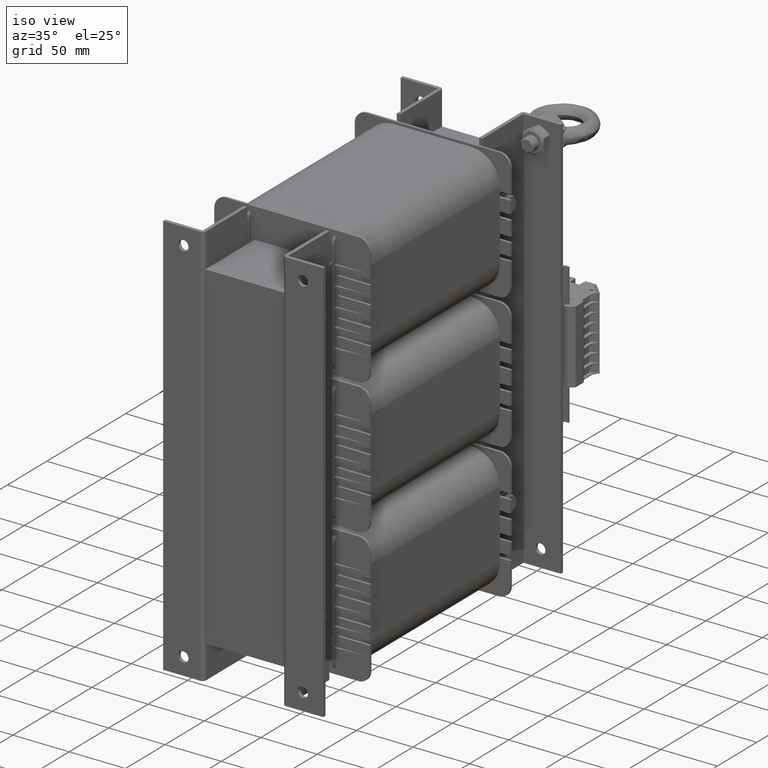
[diagram: clean part render]
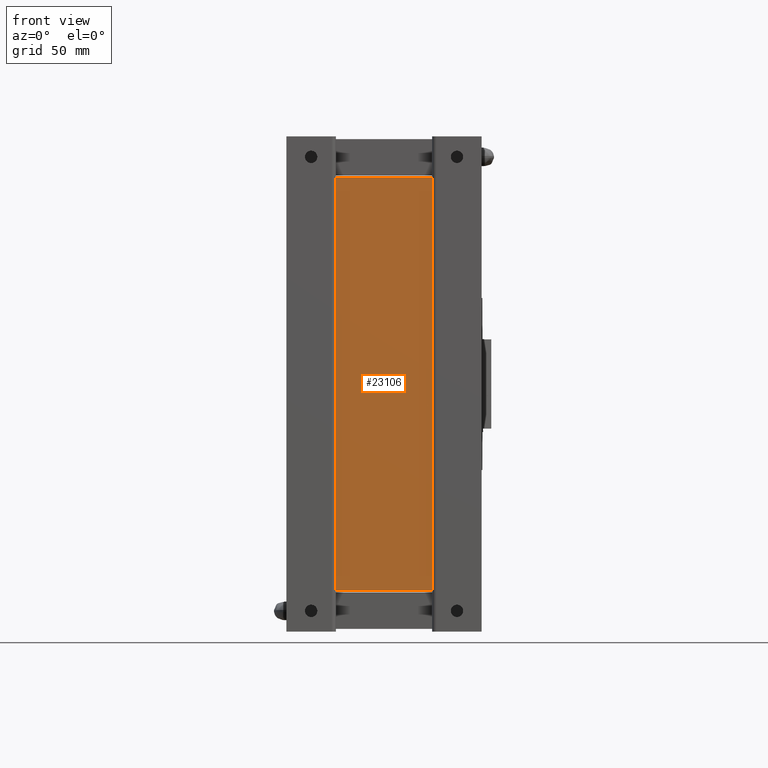
[diagram: tour spotlight — one face highlighted and labeled with its STEP entity id]
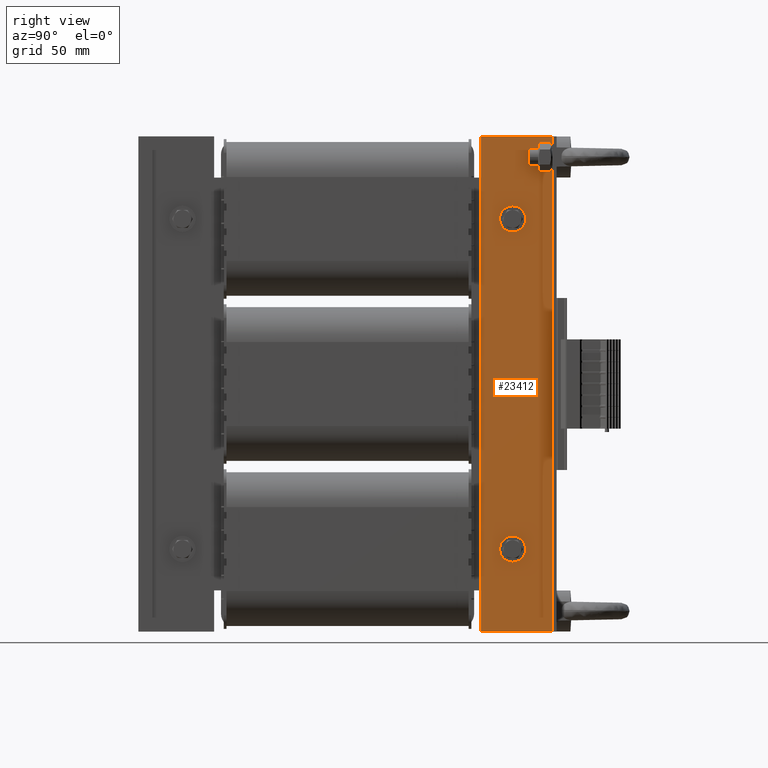
[diagram: tour spotlight — one face highlighted and labeled with its STEP entity id]
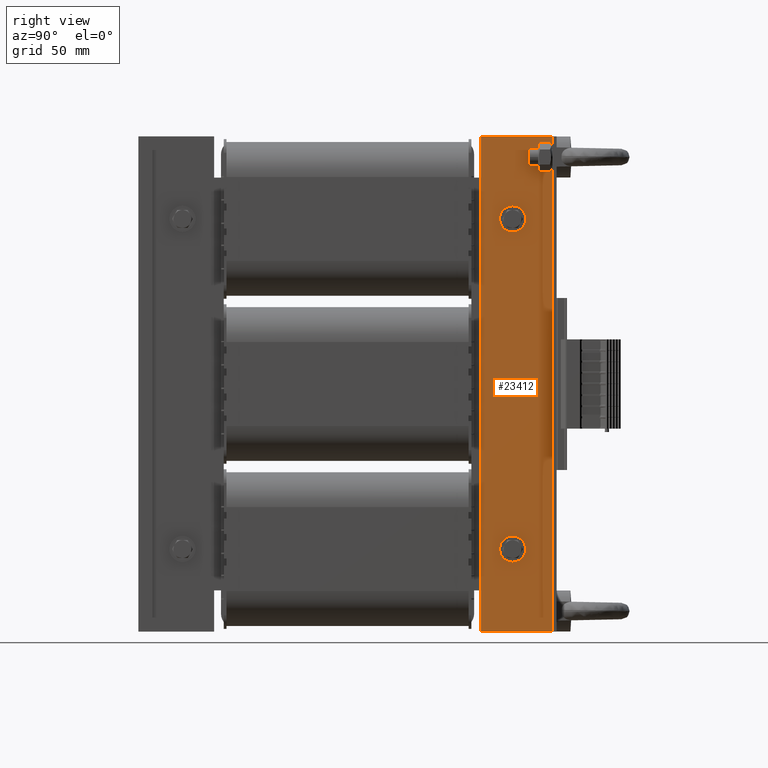
[diagram: tour spotlight — one face highlighted and labeled with its STEP entity id]
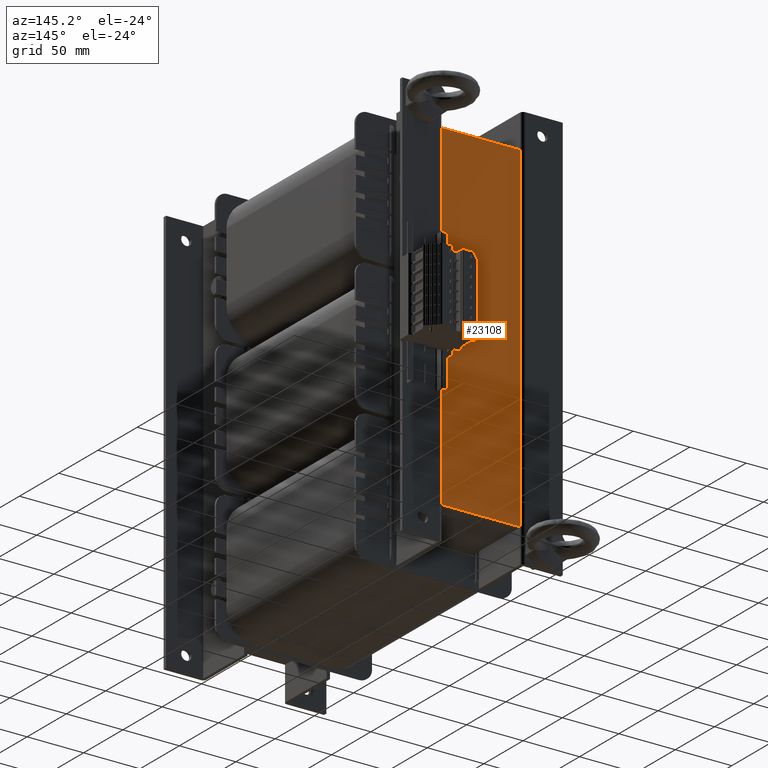
[diagram: tour spotlight — one face highlighted and labeled with its STEP entity id]
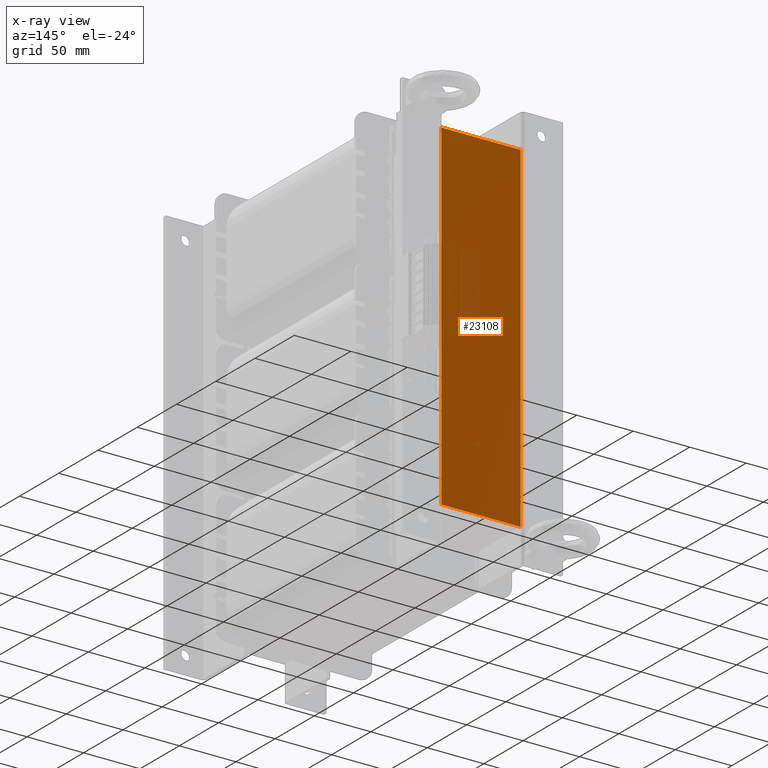
[diagram: x-ray of the same camera — body ghosted, this tour face saturated]
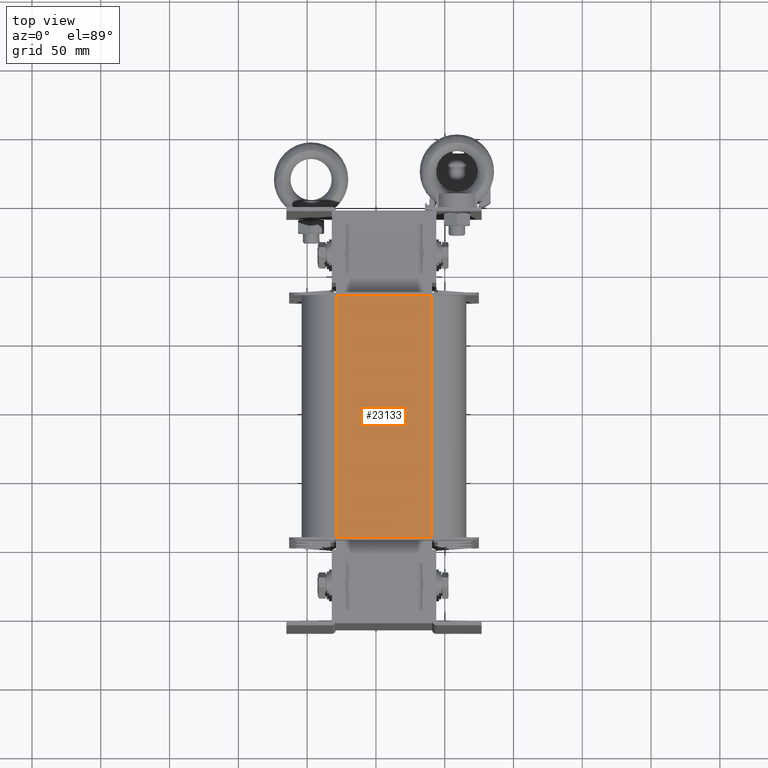
[diagram: tour spotlight — one face highlighted and labeled with its STEP entity id]
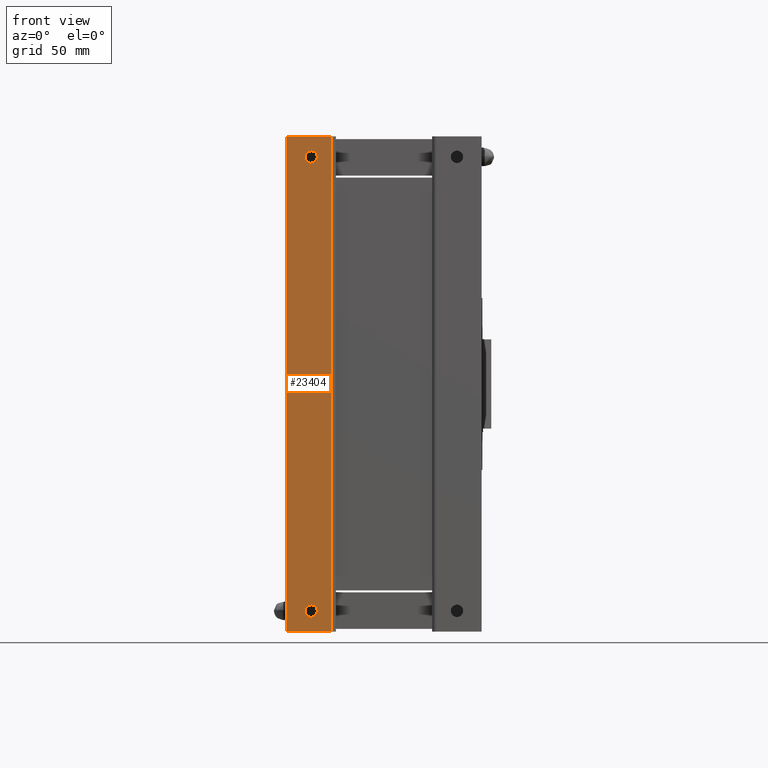
[diagram: tour spotlight — one face highlighted and labeled with its STEP entity id]
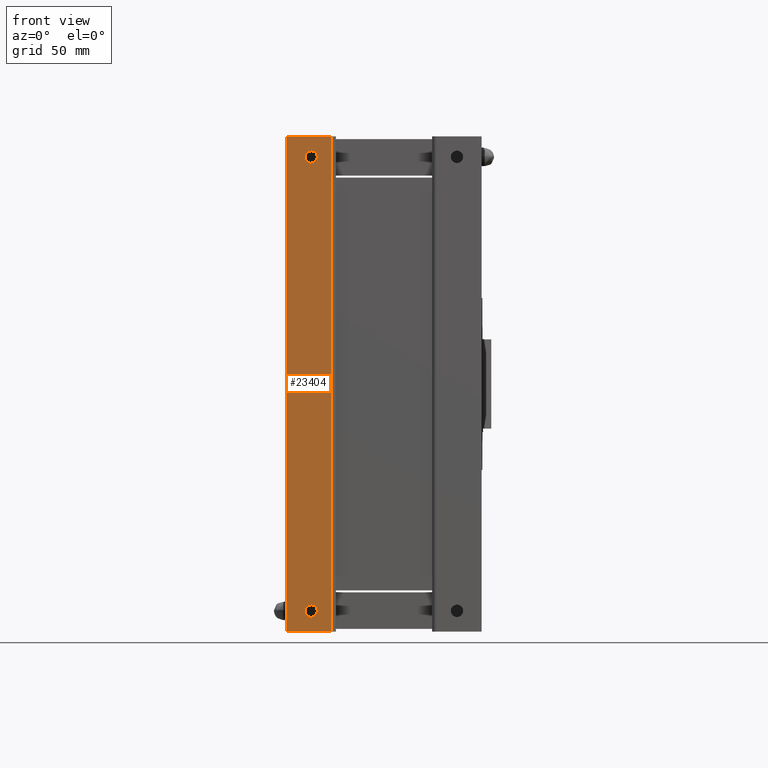
[diagram: tour spotlight — one face highlighted and labeled with its STEP entity id]
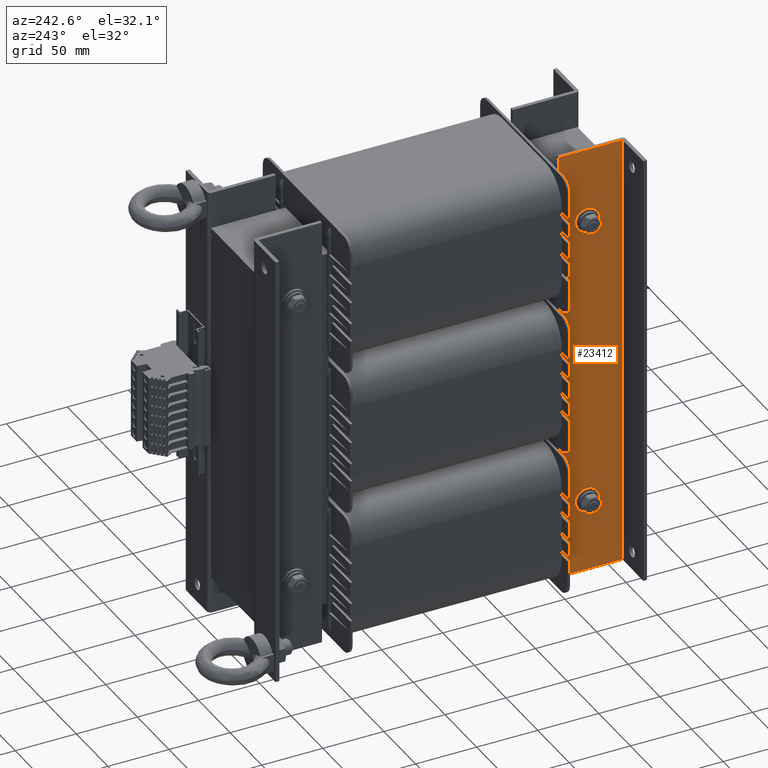
[diagram: tour spotlight — one face highlighted and labeled with its STEP entity id]
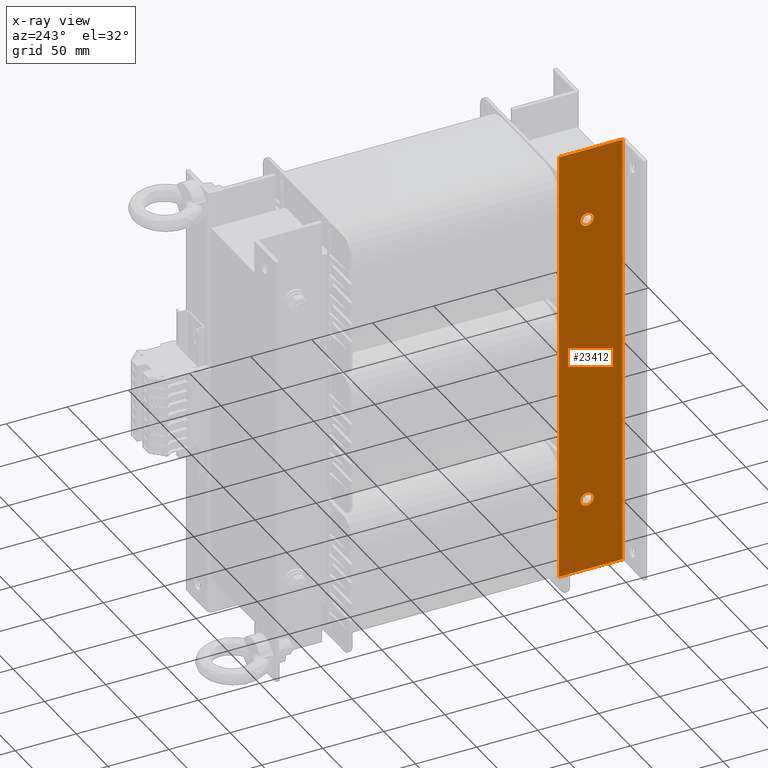
[diagram: x-ray of the same camera — body ghosted, this tour face saturated]
A machine part: a face-by-face anatomy tour. The part has 3384 B-rep faces; the first image is the clean iso view, then the 8 largest visible faces are spotlighted one at a time (largest first), each with its STEP entity span.

Face 1 — front view, entity #23106. In plain terms, the highlighted planar face has unit normal (-0, -1, 0).
Definition (entity closure, byte-faithful):
#2030=FACE_OUTER_BOUND('',#3265,.T.);
#3265=EDGE_LOOP('',(#15490,#15491,#15492,#15493));
#4591=LINE('',#33360,#7227);
#4592=LINE('',#33363,#7228);
#4593=LINE('',#33365,#7229);
#4594=LINE('',#33366,#7230);
#7227=VECTOR('',#26739,10.);
#7228=VECTOR('',#26742,10.);
#7229=VECTOR('',#26743,10.);
#7230=VECTOR('',#26744,10.);
#9856=VERTEX_POINT('',#33353);
#9859=VERTEX_POINT('',#33358);
#9860=VERTEX_POINT('',#33362);
#9861=VERTEX_POINT('',#33364);
#12087=EDGE_CURVE('',#9856,#9859,#4591,.T.);
#12088=EDGE_CURVE('',#9860,#9856,#4592,.T.);
#12089=EDGE_CURVE('',#9861,#9859,#4593,.T.);
#12090=EDGE_CURVE('',#9860,#9861,#4594,.T.);
#15490=ORIENTED_EDGE('',*,*,#12088,.T.);
#15491=ORIENTED_EDGE('',*,*,#12087,.T.);
#15492=ORIENTED_EDGE('',*,*,#12089,.F.);
#15493=ORIENTED_EDGE('',*,*,#12090,.F.);
#22227=PLANE('',#24695);
#23106=ADVANCED_FACE('',(#2030),#22227,.T.);
#24695=AXIS2_PLACEMENT_3D('',#33361,#26740,#26741);
#26739=DIRECTION('',(1.,0.,0.));
#26740=DIRECTION('center_axis',(0.,-1.,-3.5527136788005E-16));
#26741=DIRECTION('ref_axis',(0.,3.5527136788005E-16,-1.));
#26742=DIRECTION('',(0.,3.5527136788005E-16,-1.));
#26743=DIRECTION('',(0.,3.5527136788005E-16,-1.));
#26744=DIRECTION('',(1.,0.,0.));
#33353=CARTESIAN_POINT('',(0.,0.,0.));
#33358=CARTESIAN_POINT('',(70.,0.,0.));
#33360=CARTESIAN_POINT('',(0.,0.,0.));
#33361=CARTESIAN_POINT('Origin',(0.,-1.06581410364015E-13,300.));
#33362=CARTESIAN_POINT('',(0.,-1.06581410364015E-13,300.));
#33363=CARTESIAN_POINT('',(0.,-1.06581410364015E-13,300.));
#33364=CARTESIAN_POINT('',(70.,-1.06581410364015E-13,300.));
#33365=CARTESIAN_POINT('',(70.,-1.06581410364015E-13,300.));
#33366=CARTESIAN_POINT('',(0.,-1.06581410364015E-13,300.));

Face 2 — right view, entity #23412. In plain terms, the highlighted planar face has unit normal (1, -0, 0).
Definition (entity closure, byte-faithful):
#1047=FACE_BOUND('',#3598,.T.);
#1048=FACE_BOUND('',#3599,.T.);
#1208=CIRCLE('',#25106,5.25);
#1209=CIRCLE('',#25108,5.24999999999999);
#2336=FACE_OUTER_BOUND('',#3597,.T.);
#3597=EDGE_LOOP('',(#17080,#17081,#17082,#17083));
#3598=EDGE_LOOP('',(#17084));
#3599=EDGE_LOOP('',(#17085));
#5253=LINE('',#34937,#7889);
#5256=LINE('',#34943,#7892);
#5261=LINE('',#34962,#7897);
#5263=LINE('',#34965,#7899);
#7889=VECTOR('',#28213,10.);
#7892=VECTOR('',#28218,10.);
#7897=VECTOR('',#28239,10.);
#7899=VECTOR('',#28243,10.);
#10341=VERTEX_POINT('',#34922);
#10342=VERTEX_POINT('',#34926);
#10345=VERTEX_POINT('',#34941);
#10349=VERTEX_POINT('',#34953);
#10350=VERTEX_POINT('',#34957);
#10351=VERTEX_POINT('',#34961);
#12857=EDGE_CURVE('',#10341,#10342,#5253,.T.);
#12860=EDGE_CURVE('',#10345,#10342,#5256,.T.);
#12866=EDGE_CURVE('',#10349,#10349,#1208,.T.);
#12868=EDGE_CURVE('',#10350,#10350,#1209,.T.);
#12869=EDGE_CURVE('',#10351,#10345,#5261,.T.);
#12871=EDGE_CURVE('',#10341,#10351,#5263,.T.);
#17080=ORIENTED_EDGE('',*,*,#12857,.T.);
#17081=ORIENTED_EDGE('',*,*,#12860,.F.);
#17082=ORIENTED_EDGE('',*,*,#12869,.F.);
#17083=ORIENTED_EDGE('',*,*,#12871,.F.);
#17084=ORIENTED_EDGE('',*,*,#12866,.T.);
#17085=ORIENTED_EDGE('',*,*,#12868,.T.);
#22477=PLANE('',#25111);
#23412=ADVANCED_FACE('',(#2336,#1047,#1048),#22477,.T.);
#25106=AXIS2_PLACEMENT_3D('',#34955,#28230,#28231);
#25108=AXIS2_PLACEMENT_3D('',#34959,#28235,#28236);
#25111=AXIS2_PLACEMENT_3D('',#34966,#28244,#28245);
#28213=DIRECTION('',(2.96059473233375E-16,0.,1.));
#28218=DIRECTION('',(-1.,0.,0.));
#28230=DIRECTION('center_axis',(0.,-1.,0.));
#28231=DIRECTION('ref_axis',(1.,0.,0.));
#28235=DIRECTION('center_axis',(0.,-1.,0.));
#28236=DIRECTION('ref_axis',(1.,0.,0.));
#28239=DIRECTION('',(3.20731096002823E-16,0.,1.));
#28243=DIRECTION('',(1.,0.,0.));
#28244=DIRECTION('center_axis',(0.,1.,0.));
#28245=DIRECTION('ref_axis',(0.,0.,1.));
#34922=CARTESIAN_POINT('',(-51.999,3.,0.));
#34926=CARTESIAN_POINT('',(-51.9989999999999,3.,360.));
#34937=CARTESIAN_POINT('',(-51.9989999999999,3.,270.));
#34941=CARTESIAN_POINT('',(1.15463194561016E-13,3.,360.));
#34943=CARTESIAN_POINT('',(-54.9999999999999,3.,360.));
#34953=CARTESIAN_POINT('',(-28.25,3.,60.));
#34955=CARTESIAN_POINT('Origin',(-23.,3.,60.));
#34957=CARTESIAN_POINT('',(-28.25,3.,300.));
#34959=CARTESIAN_POINT('Origin',(-23.,3.,300.));
#34961=CARTESIAN_POINT('',(0.,3.,0.));
#34962=CARTESIAN_POINT('',(1.15463194561016E-13,3.,360.));
#34965=CARTESIAN_POINT('',(0.,3.,0.));
#34966=CARTESIAN_POINT('Origin',(-27.4999999999999,3.,180.));

Face 3 — right view, entity #23412. In plain terms, the highlighted planar face has unit normal (1, -0, 0).
Definition (entity closure, byte-faithful):
#1047=FACE_BOUND('',#3598,.T.);
#1048=FACE_BOUND('',#3599,.T.);
#1208=CIRCLE('',#25106,5.25);
#1209=CIRCLE('',#25108,5.24999999999999);
#2336=FACE_OUTER_BOUND('',#3597,.T.);
#3597=EDGE_LOOP('',(#17080,#17081,#17082,#17083));
#3598=EDGE_LOOP('',(#17084));
#3599=EDGE_LOOP('',(#17085));
#5253=LINE('',#34937,#7889);
#5256=LINE('',#34943,#7892);
#5261=LINE('',#34962,#7897);
#5263=LINE('',#34965,#7899);
#7889=VECTOR('',#28213,10.);
#7892=VECTOR('',#28218,10.);
#7897=VECTOR('',#28239,10.);
#7899=VECTOR('',#28243,10.);
#10341=VERTEX_POINT('',#34922);
#10342=VERTEX_POINT('',#34926);
#10345=VERTEX_POINT('',#34941);
#10349=VERTEX_POINT('',#34953);
#10350=VERTEX_POINT('',#34957);
#10351=VERTEX_POINT('',#34961);
#12857=EDGE_CURVE('',#10341,#10342,#5253,.T.);
#12860=EDGE_CURVE('',#10345,#10342,#5256,.T.);
#12866=EDGE_CURVE('',#10349,#10349,#1208,.T.);
#12868=EDGE_CURVE('',#10350,#10350,#1209,.T.);
#12869=EDGE_CURVE('',#10351,#10345,#5261,.T.);
#12871=EDGE_CURVE('',#10341,#10351,#5263,.T.);
#17080=ORIENTED_EDGE('',*,*,#12857,.T.);
#17081=ORIENTED_EDGE('',*,*,#12860,.F.);
#17082=ORIENTED_EDGE('',*,*,#12869,.F.);
#17083=ORIENTED_EDGE('',*,*,#12871,.F.);
#17084=ORIENTED_EDGE('',*,*,#12866,.T.);
#17085=ORIENTED_EDGE('',*,*,#12868,.T.);
#22477=PLANE('',#25111);
#23412=ADVANCED_FACE('',(#2336,#1047,#1048),#22477,.T.);
#25106=AXIS2_PLACEMENT_3D('',#34955,#28230,#28231);
#25108=AXIS2_PLACEMENT_3D('',#34959,#28235,#28236);
#25111=AXIS2_PLACEMENT_3D('',#34966,#28244,#28245);
#28213=DIRECTION('',(2.96059473233375E-16,0.,1.));
#28218=DIRECTION('',(-1.,0.,0.));
#28230=DIRECTION('center_axis',(0.,-1.,0.));
#28231=DIRECTION('ref_axis',(1.,0.,0.));
#28235=DIRECTION('center_axis',(0.,-1.,0.));
#28236=DIRECTION('ref_axis',(1.,0.,0.));
#28239=DIRECTION('',(3.20731096002823E-16,0.,1.));
#28243=DIRECTION('',(1.,0.,0.));
#28244=DIRECTION('center_axis',(0.,1.,0.));
#28245=DIRECTION('ref_axis',(0.,0.,1.));
#34922=CARTESIAN_POINT('',(-51.999,3.,0.));
#34926=CARTESIAN_POINT('',(-51.9989999999999,3.,360.));
#34937=CARTESIAN_POINT('',(-51.9989999999999,3.,270.));
#34941=CARTESIAN_POINT('',(1.15463194561016E-13,3.,360.));
#34943=CARTESIAN_POINT('',(-54.9999999999999,3.,360.));
#34953=CARTESIAN_POINT('',(-28.25,3.,60.));
#34955=CARTESIAN_POINT('Origin',(-23.,3.,60.));
#34957=CARTESIAN_POINT('',(-28.25,3.,300.));
#34959=CARTESIAN_POINT('Origin',(-23.,3.,300.));
#34961=CARTESIAN_POINT('',(0.,3.,0.));
#34962=CARTESIAN_POINT('',(1.15463194561016E-13,3.,360.));
#34965=CARTESIAN_POINT('',(0.,3.,0.));
#34966=CARTESIAN_POINT('Origin',(-27.4999999999999,3.,180.));

Face 4 — auxiliary view, entity #23108. An x-ray twin of the same camera follows (body ghosted, this face saturated) — the face is partly hidden behind the body. In plain terms, the highlighted planar face has unit normal (0, 1, -0).
Definition (entity closure, byte-faithful):
#2032=FACE_OUTER_BOUND('',#3267,.T.);
#3267=EDGE_LOOP('',(#15498,#15499,#15500,#15501));
#4589=LINE('',#33357,#7225);
#4597=LINE('',#33372,#7233);
#4598=LINE('',#33374,#7234);
#4599=LINE('',#33375,#7235);
#7225=VECTOR('',#26737,10.);
#7233=VECTOR('',#26749,10.);
#7234=VECTOR('',#26752,10.);
#7235=VECTOR('',#26753,10.);
#9857=VERTEX_POINT('',#33354);
#9858=VERTEX_POINT('',#33356);
#9862=VERTEX_POINT('',#33368);
#9863=VERTEX_POINT('',#33370);
#12085=EDGE_CURVE('',#9857,#9858,#4589,.T.);
#12093=EDGE_CURVE('',#9862,#9863,#4597,.T.);
#12094=EDGE_CURVE('',#9857,#9862,#4598,.T.);
#12095=EDGE_CURVE('',#9858,#9863,#4599,.T.);
#15498=ORIENTED_EDGE('',*,*,#12094,.T.);
#15499=ORIENTED_EDGE('',*,*,#12093,.T.);
#15500=ORIENTED_EDGE('',*,*,#12095,.F.);
#15501=ORIENTED_EDGE('',*,*,#12085,.F.);
#22229=PLANE('',#24697);
#23108=ADVANCED_FACE('',(#2032),#22229,.T.);
#24697=AXIS2_PLACEMENT_3D('',#33373,#26750,#26751);
#26737=DIRECTION('',(1.,0.,0.));
#26749=DIRECTION('',(1.,0.,0.));
#26750=DIRECTION('center_axis',(0.,1.,2.368475785867E-16));
#26751=DIRECTION('ref_axis',(0.,-2.368475785867E-16,1.));
#26752=DIRECTION('',(0.,-2.368475785867E-16,1.));
#26753=DIRECTION('',(0.,-2.368475785867E-16,1.));
#33354=CARTESIAN_POINT('',(0.,300.,0.));
#33356=CARTESIAN_POINT('',(70.,300.,0.));
#33357=CARTESIAN_POINT('',(0.,300.,0.));
#33368=CARTESIAN_POINT('',(0.,300.,300.));
#33370=CARTESIAN_POINT('',(70.,300.,300.));
#33372=CARTESIAN_POINT('',(0.,300.,300.));
#33373=CARTESIAN_POINT('Origin',(0.,300.,0.));
#33374=CARTESIAN_POINT('',(0.,300.,0.));
#33375=CARTESIAN_POINT('',(70.,300.,0.));

Face 5 — top view, entity #23133. In plain terms, the highlighted planar face has unit normal (0, 0, 1).
Definition (entity closure, byte-faithful):
#2057=FACE_OUTER_BOUND('',#3304,.T.);
#3304=EDGE_LOOP('',(#15654,#15655,#15656,#15657));
#4692=LINE('',#33576,#7328);
#4693=LINE('',#33580,#7329);
#4694=LINE('',#33582,#7330);
#4695=LINE('',#33583,#7331);
#7328=VECTOR('',#26906,10.);
#7329=VECTOR('',#26911,10.);
#7330=VECTOR('',#26912,10.);
#7331=VECTOR('',#26913,10.);
#9940=VERTEX_POINT('',#33573);
#9941=VERTEX_POINT('',#33575);
#9942=VERTEX_POINT('',#33579);
#9943=VERTEX_POINT('',#33581);
#12193=EDGE_CURVE('',#9941,#9940,#4692,.T.);
#12195=EDGE_CURVE('',#9942,#9940,#4693,.T.);
#12196=EDGE_CURVE('',#9943,#9942,#4694,.T.);
#12197=EDGE_CURVE('',#9941,#9943,#4695,.T.);
#15654=ORIENTED_EDGE('',*,*,#12195,.F.);
#15655=ORIENTED_EDGE('',*,*,#12196,.F.);
#15656=ORIENTED_EDGE('',*,*,#12197,.F.);
#15657=ORIENTED_EDGE('',*,*,#12193,.T.);
#22251=PLANE('',#24729);
#23133=ADVANCED_FACE('',(#2057),#22251,.T.);
#24729=AXIS2_PLACEMENT_3D('',#33578,#26909,#26910);
#26906=DIRECTION('',(0.,1.,0.));
#26909=DIRECTION('center_axis',(0.,0.,1.));
#26910=DIRECTION('ref_axis',(1.,0.,0.));
#26911=DIRECTION('',(1.,0.,0.));
#26912=DIRECTION('',(0.,1.,0.));
#26913=DIRECTION('',(-1.,0.,0.));
#33573=CARTESIAN_POINT('',(29.4999999999709,178.,55.8691630029813));
#33575=CARTESIAN_POINT('',(29.4999999999709,2.,55.8691630029813));
#33576=CARTESIAN_POINT('',(29.4999999999709,2.,55.8691630029813));
#33578=CARTESIAN_POINT('Origin',(-39.4999999999709,2.,55.8691630029813));
#33579=CARTESIAN_POINT('',(-39.4999999999709,178.,55.8691630029813));
#33580=CARTESIAN_POINT('',(-22.2499999999854,178.,55.8691630029813));
#33581=CARTESIAN_POINT('',(-39.4999999999709,2.,55.8691630029813));
#33582=CARTESIAN_POINT('',(-39.4999999999709,2.,55.8691630029813));
#33583=CARTESIAN_POINT('',(-22.2499999999854,2.,55.8691630029813));

Face 6 — front view, entity #23404. In plain terms, the highlighted planar face has unit normal (-0, 1, 0).
Definition (entity closure, byte-faithful):
#1043=FACE_BOUND('',#3586,.T.);
#1044=FACE_BOUND('',#3587,.T.);
#1199=CIRCLE('',#25084,4.5);
#1201=CIRCLE('',#25087,4.5);
#2328=FACE_OUTER_BOUND('',#3585,.T.);
#3585=EDGE_LOOP('',(#17044,#17045,#17046,#17047));
#3586=EDGE_LOOP('',(#17048));
#3587=EDGE_LOOP('',(#17049));
#5238=LINE('',#34900,#7874);
#5243=LINE('',#34913,#7879);
#5250=LINE('',#34931,#7886);
#5252=LINE('',#34934,#7888);
#7874=VECTOR('',#28174,10.);
#7879=VECTOR('',#28185,10.);
#7886=VECTOR('',#28204,10.);
#7888=VECTOR('',#28208,10.);
#10329=VERTEX_POINT('',#34888);
#10331=VERTEX_POINT('',#34894);
#10332=VERTEX_POINT('',#34898);
#10333=VERTEX_POINT('',#34899);
#10338=VERTEX_POINT('',#34911);
#10343=VERTEX_POINT('',#34930);
#12834=EDGE_CURVE('',#10329,#10329,#1199,.T.);
#12837=EDGE_CURVE('',#10331,#10331,#1201,.T.);
#12838=EDGE_CURVE('',#10332,#10333,#5238,.T.);
#12845=EDGE_CURVE('',#10338,#10333,#5243,.T.);
#12854=EDGE_CURVE('',#10332,#10343,#5250,.T.);
#12856=EDGE_CURVE('',#10343,#10338,#5252,.T.);
#17044=ORIENTED_EDGE('',*,*,#12838,.T.);
#17045=ORIENTED_EDGE('',*,*,#12845,.F.);
#17046=ORIENTED_EDGE('',*,*,#12856,.F.);
#17047=ORIENTED_EDGE('',*,*,#12854,.F.);
#17048=ORIENTED_EDGE('',*,*,#12834,.T.);
#17049=ORIENTED_EDGE('',*,*,#12837,.T.);
#22472=PLANE('',#25099);
#23404=ADVANCED_FACE('',(#2328,#1043,#1044),#22472,.F.);
#25084=AXIS2_PLACEMENT_3D('',#34890,#28163,#28164);
#25087=AXIS2_PLACEMENT_3D('',#34896,#28170,#28171);
#25099=AXIS2_PLACEMENT_3D('',#34935,#28209,#28210);
#28163=DIRECTION('center_axis',(1.,-1.78077262884922E-15,-3.68689198618071E-14));
#28164=DIRECTION('ref_axis',(4.736951571734E-14,-3.25665420556713E-14,1.));
#28170=DIRECTION('center_axis',(1.,-1.78077262884922E-15,-3.68689198618071E-14));
#28171=DIRECTION('ref_axis',(3.70074341541719E-14,-3.25665420556712E-14,
1.));
#28174=DIRECTION('',(3.68689198618071E-14,-6.26651381584941E-29,1.));
#28185=DIRECTION('',(-4.44577050078186E-12,-1.,3.20731096004249E-16));
#28204=DIRECTION('',(1.71512449944288E-15,1.,-5.42341872339446E-31));
#28208=DIRECTION('',(5.15143483426072E-14,-3.25418704329019E-14,1.));
#28209=DIRECTION('center_axis',(1.,-1.78077262884922E-15,-3.68689198618071E-14));
#28210=DIRECTION('ref_axis',(3.68689198618071E-14,3.2073109600276E-16,1.));
#34888=CARTESIAN_POINT('',(-54.9999999999881,18.0000000000006,340.499999999999));
#34890=CARTESIAN_POINT('Origin',(-54.9999999999862,18.0000000000005,344.999999999999));
#34894=CARTESIAN_POINT('',(-55.0000000000003,18.0000000000114,10.4999999999993));
#34896=CARTESIAN_POINT('Origin',(-55.0000000000002,18.0000000000112,14.9999999999993));
#34898=CARTESIAN_POINT('',(-55.0000000000033,3.00100000000001,-3.30587232976065E-14));
#34899=CARTESIAN_POINT('',(-54.9999999999848,3.001,360.));
#34900=CARTESIAN_POINT('',(-54.9999999999941,3.001,179.999999999999));
#34911=CARTESIAN_POINT('',(-54.9999999999874,36.,360.));
#34913=CARTESIAN_POINT('',(-54.999999999994,0.925978052309819,360.));
#34930=CARTESIAN_POINT('',(-55.0000000000007,36.0000000000117,-3.30587232976074E-14));
#34931=CARTESIAN_POINT('',(-55.0000000000033,3.00100000001172,-3.30587232976065E-14));
#34934=CARTESIAN_POINT('',(-55.0000000000033,36.0000000000117,-3.30587232976066E-14));
#34935=CARTESIAN_POINT('Origin',(-54.999999999994,18.4629890261578,179.999999999997));

Face 7 — front view, entity #23404. In plain terms, the highlighted planar face has unit normal (0, 1, -0).
Definition (entity closure, byte-faithful):
#1043=FACE_BOUND('',#3586,.T.);
#1044=FACE_BOUND('',#3587,.T.);
#1199=CIRCLE('',#25084,4.5);
#1201=CIRCLE('',#25087,4.5);
#2328=FACE_OUTER_BOUND('',#3585,.T.);
#3585=EDGE_LOOP('',(#17044,#17045,#17046,#17047));
#3586=EDGE_LOOP('',(#17048));
#3587=EDGE_LOOP('',(#17049));
#5238=LINE('',#34900,#7874);
#5243=LINE('',#34913,#7879);
#5250=LINE('',#34931,#7886);
#5252=LINE('',#34934,#7888);
#7874=VECTOR('',#28174,10.);
#7879=VECTOR('',#28185,10.);
#7886=VECTOR('',#28204,10.);
#7888=VECTOR('',#28208,10.);
#10329=VERTEX_POINT('',#34888);
#10331=VERTEX_POINT('',#34894);
#10332=VERTEX_POINT('',#34898);
#10333=VERTEX_POINT('',#34899);
#10338=VERTEX_POINT('',#34911);
#10343=VERTEX_POINT('',#34930);
#12834=EDGE_CURVE('',#10329,#10329,#1199,.T.);
#12837=EDGE_CURVE('',#10331,#10331,#1201,.T.);
#12838=EDGE_CURVE('',#10332,#10333,#5238,.T.);
#12845=EDGE_CURVE('',#10338,#10333,#5243,.T.);
#12854=EDGE_CURVE('',#10332,#10343,#5250,.T.);
#12856=EDGE_CURVE('',#10343,#10338,#5252,.T.);
#17044=ORIENTED_EDGE('',*,*,#12838,.T.);
#17045=ORIENTED_EDGE('',*,*,#12845,.F.);
#17046=ORIENTED_EDGE('',*,*,#12856,.F.);
#17047=ORIENTED_EDGE('',*,*,#12854,.F.);
#17048=ORIENTED_EDGE('',*,*,#12834,.T.);
#17049=ORIENTED_EDGE('',*,*,#12837,.T.);
#22472=PLANE('',#25099);
#23404=ADVANCED_FACE('',(#2328,#1043,#1044),#22472,.F.);
#25084=AXIS2_PLACEMENT_3D('',#34890,#28163,#28164);
#25087=AXIS2_PLACEMENT_3D('',#34896,#28170,#28171);
#25099=AXIS2_PLACEMENT_3D('',#34935,#28209,#28210);
#28163=DIRECTION('center_axis',(1.,-1.78077262884922E-15,-3.68689198618071E-14));
#28164=DIRECTION('ref_axis',(4.736951571734E-14,-3.25665420556713E-14,1.));
#28170=DIRECTION('center_axis',(1.,-1.78077262884922E-15,-3.68689198618071E-14));
#28171=DIRECTION('ref_axis',(3.70074341541719E-14,-3.25665420556712E-14,
1.));
#28174=DIRECTION('',(3.68689198618071E-14,-6.26651381584941E-29,1.));
#28185=DIRECTION('',(-4.44577050078186E-12,-1.,3.20731096004249E-16));
#28204=DIRECTION('',(1.71512449944288E-15,1.,-5.42341872339446E-31));
#28208=DIRECTION('',(5.15143483426072E-14,-3.25418704329019E-14,1.));
#28209=DIRECTION('center_axis',(1.,-1.78077262884922E-15,-3.68689198618071E-14));
#28210=DIRECTION('ref_axis',(3.68689198618071E-14,3.2073109600276E-16,1.));
#34888=CARTESIAN_POINT('',(-54.9999999999881,18.0000000000006,340.499999999999));
#34890=CARTESIAN_POINT('Origin',(-54.9999999999862,18.0000000000005,344.999999999999));
#34894=CARTESIAN_POINT('',(-55.0000000000003,18.0000000000114,10.4999999999993));
#34896=CARTESIAN_POINT('Origin',(-55.0000000000002,18.0000000000112,14.9999999999993));
#34898=CARTESIAN_POINT('',(-55.0000000000033,3.00100000000001,-3.30587232976065E-14));
#34899=CARTESIAN_POINT('',(-54.9999999999848,3.001,360.));
#34900=CARTESIAN_POINT('',(-54.9999999999941,3.001,179.999999999999));
#34911=CARTESIAN_POINT('',(-54.9999999999874,36.,360.));
#34913=CARTESIAN_POINT('',(-54.999999999994,0.925978052309819,360.));
#34930=CARTESIAN_POINT('',(-55.0000000000007,36.0000000000117,-3.30587232976074E-14));
#34931=CARTESIAN_POINT('',(-55.0000000000033,3.00100000001172,-3.30587232976065E-14));
#34934=CARTESIAN_POINT('',(-55.0000000000033,36.0000000000117,-3.30587232976066E-14));
#34935=CARTESIAN_POINT('Origin',(-54.999999999994,18.4629890261578,179.999999999997));

Face 8 — auxiliary view, entity #23412. An x-ray twin of the same camera follows (body ghosted, this face saturated) — the face is partly hidden behind the body. In plain terms, the highlighted planar face has unit normal (-1, -0, -0).
Definition (entity closure, byte-faithful):
#1047=FACE_BOUND('',#3598,.T.);
#1048=FACE_BOUND('',#3599,.T.);
#1208=CIRCLE('',#25106,5.25);
#1209=CIRCLE('',#25108,5.24999999999999);
#2336=FACE_OUTER_BOUND('',#3597,.T.);
#3597=EDGE_LOOP('',(#17080,#17081,#17082,#17083));
#3598=EDGE_LOOP('',(#17084));
#3599=EDGE_LOOP('',(#17085));
#5253=LINE('',#34937,#7889);
#5256=LINE('',#34943,#7892);
#5261=LINE('',#34962,#7897);
#5263=LINE('',#34965,#7899);
#7889=VECTOR('',#28213,10.);
#7892=VECTOR('',#28218,10.);
#7897=VECTOR('',#28239,10.);
#7899=VECTOR('',#28243,10.);
#10341=VERTEX_POINT('',#34922);
#10342=VERTEX_POINT('',#34926);
#10345=VERTEX_POINT('',#34941);
#10349=VERTEX_POINT('',#34953);
#10350=VERTEX_POINT('',#34957);
#10351=VERTEX_POINT('',#34961);
#12857=EDGE_CURVE('',#10341,#10342,#5253,.T.);
#12860=EDGE_CURVE('',#10345,#10342,#5256,.T.);
#12866=EDGE_CURVE('',#10349,#10349,#1208,.T.);
#12868=EDGE_CURVE('',#10350,#10350,#1209,.T.);
#12869=EDGE_CURVE('',#10351,#10345,#5261,.T.);
#12871=EDGE_CURVE('',#10341,#10351,#5263,.T.);
#17080=ORIENTED_EDGE('',*,*,#12857,.T.);
#17081=ORIENTED_EDGE('',*,*,#12860,.F.);
#17082=ORIENTED_EDGE('',*,*,#12869,.F.);
#17083=ORIENTED_EDGE('',*,*,#12871,.F.);
#17084=ORIENTED_EDGE('',*,*,#12866,.T.);
#17085=ORIENTED_EDGE('',*,*,#12868,.T.);
#22477=PLANE('',#25111);
#23412=ADVANCED_FACE('',(#2336,#1047,#1048),#22477,.T.);
#25106=AXIS2_PLACEMENT_3D('',#34955,#28230,#28231);
#25108=AXIS2_PLACEMENT_3D('',#34959,#28235,#28236);
#25111=AXIS2_PLACEMENT_3D('',#34966,#28244,#28245);
#28213=DIRECTION('',(2.96059473233375E-16,0.,1.));
#28218=DIRECTION('',(-1.,0.,0.));
#28230=DIRECTION('center_axis',(0.,-1.,0.));
#28231=DIRECTION('ref_axis',(1.,0.,0.));
#28235=DIRECTION('center_axis',(0.,-1.,0.));
#28236=DIRECTION('ref_axis',(1.,0.,0.));
#28239=DIRECTION('',(3.20731096002823E-16,0.,1.));
#28243=DIRECTION('',(1.,0.,0.));
#28244=DIRECTION('center_axis',(0.,1.,0.));
#28245=DIRECTION('ref_axis',(0.,0.,1.));
#34922=CARTESIAN_POINT('',(-51.999,3.,0.));
#34926=CARTESIAN_POINT('',(-51.9989999999999,3.,360.));
#34937=CARTESIAN_POINT('',(-51.9989999999999,3.,270.));
#34941=CARTESIAN_POINT('',(1.15463194561016E-13,3.,360.));
#34943=CARTESIAN_POINT('',(-54.9999999999999,3.,360.));
#34953=CARTESIAN_POINT('',(-28.25,3.,60.));
#34955=CARTESIAN_POINT('Origin',(-23.,3.,60.));
#34957=CARTESIAN_POINT('',(-28.25,3.,300.));
#34959=CARTESIAN_POINT('Origin',(-23.,3.,300.));
#34961=CARTESIAN_POINT('',(0.,3.,0.));
#34962=CARTESIAN_POINT('',(1.15463194561016E-13,3.,360.));
#34965=CARTESIAN_POINT('',(0.,3.,0.));
#34966=CARTESIAN_POINT('Origin',(-27.4999999999999,3.,180.));